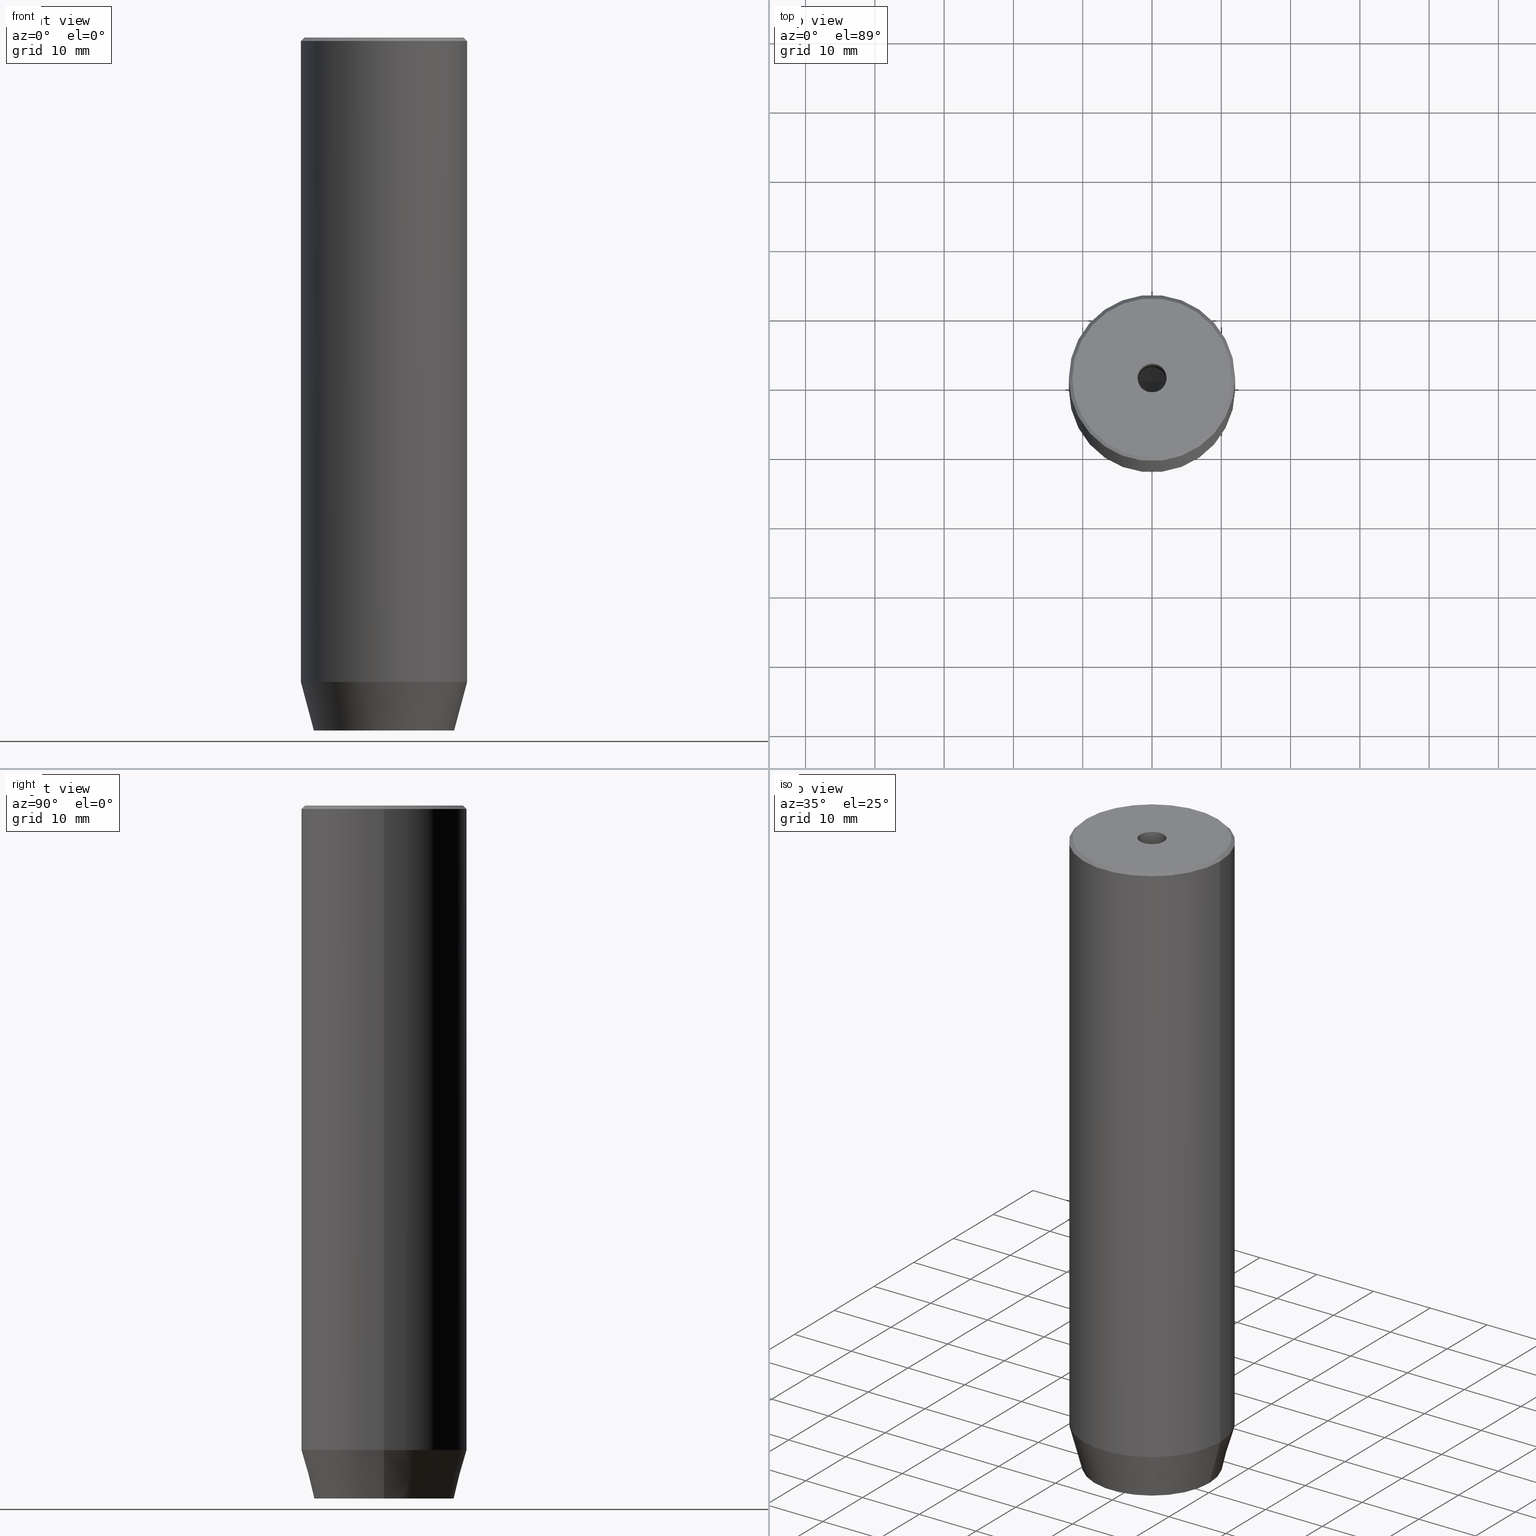
[diagram: canonical four-view strip — front | top / right | iso, engineering-drawing reading convention]
A machine part, canonical four-view strip (front | top / right | iso — engineering-drawing reading convention). The complete STEP part file that produces these views, byte-faithful:
ISO-10303-21;
HEADER;
FILE_DESCRIPTION (( 'STEP AP203' ),
    '1' );
FILE_NAME ('69d4.STEP',
    '2024-01-02T17:16:08',
    ( '' ),
    ( '' ),
    'SwSTEP 2.0',
    'SolidWorks 2019',
    '' );
FILE_SCHEMA (( 'CONFIG_CONTROL_DESIGN' ));
ENDSEC;

DATA;
#1 = CARTESIAN_POINT ( 'NONE',  ( -4.000000000000000000, 0.000000000000000000, -97.20000000000000284 ) ) ;
#2 = EDGE_LOOP ( 'NONE', ( #17, #92, #199, #133 ) ) ;
#3 = DIRECTION ( 'NONE',  ( 0.000000000000000000, 1.000000000000000000, 0.000000000000000000 ) ) ;
#4 = AXIS2_PLACEMENT_3D ( 'NONE', #463, #283, #83 ) ;
#5 = EDGE_CURVE ( 'NONE', #471, #516, #33, .T. ) ;
#6 = LINE ( 'NONE', #482, #538 ) ;
#7 = ORIENTED_EDGE ( 'NONE', *, *, #391, .T. ) ;
#8 = EDGE_CURVE ( 'NONE', #352, #516, #214, .T. ) ;
#9 = EDGE_LOOP ( 'NONE', ( #558, #257, #338, #163 ) ) ;
#10 = ORIENTED_EDGE ( 'NONE', *, *, #31, .F. ) ;
#11 = VERTEX_POINT ( 'NONE', #525 ) ;
#12 = EDGE_CURVE ( 'NONE', #137, #421, #445, .T. ) ;
#13 = CARTESIAN_POINT ( 'NONE',  ( -10.12435565298213547, 1.354726066681111050E-15, -100.0000000000000000 ) ) ;
#14 = ORIENTED_EDGE ( 'NONE', *, *, #561, .F. ) ;
#15 = DIRECTION ( 'NONE',  ( 0.5000000000000003331, -0.8660254037844385966, 0.000000000000000000 ) ) ;
#16 = CALENDAR_DATE ( 2024, 2, 1 ) ;
#17 = ORIENTED_EDGE ( 'NONE', *, *, #71, .T. ) ;
#18 = CIRCLE ( 'NONE', #440, 11.49999999999998046 ) ;
#19 = CC_DESIGN_SECURITY_CLASSIFICATION ( #208, ( #90 ) ) ;
#20 = VECTOR ( 'NONE', #494, 1000.000000000000000 ) ;
#21 = AXIS2_PLACEMENT_3D ( 'NONE', #459, #546, #550 ) ;
#22 = FACE_OUTER_BOUND ( 'NONE', #150, .T. ) ;
#23 = ADVANCED_FACE ( 'NONE', ( #68 ), #294, .T. ) ;
#24 = APPROVAL_ROLE ( '' ) ;
#25 = DIRECTION ( 'NONE',  ( 1.000000000000000000, 0.000000000000000000, 0.000000000000000000 ) ) ;
#26 = CARTESIAN_POINT ( 'NONE',  ( 0.000000000000000000, 0.000000000000000000, 0.000000000000000000 ) ) ;
#27 = ADVANCED_FACE ( 'NONE', ( #527 ), #120, .T. ) ;
#28 = DIRECTION ( 'NONE',  ( -0.000000000000000000, -0.000000000000000000, 1.000000000000000000 ) ) ;
#29 = CARTESIAN_POINT ( 'NONE',  ( 2.099999999999994760, 0.000000000000000000, -30.00000000000000000 ) ) ;
#30 = PLANE ( 'NONE',  #413 ) ;
#31 = EDGE_CURVE ( 'NONE', #514, #352, #52, .T. ) ;
#32 = DIRECTION ( 'NONE',  ( 0.8660254037844384856, -0.5000000000000002220, 0.000000000000000000 ) ) ;
#33 = LINE ( 'NONE', #493, #156 ) ;
#34 = PRODUCT_DEFINITION ( 'NEZN�M�', '', #90, #400 ) ;
#35 = LINE ( 'NONE', #326, #343 ) ;
#36 = CARTESIAN_POINT ( 'NONE',  ( -2.099999999999996980, 2.571758278209438013E-16, 0.000000000000000000 ) ) ;
#37 = EDGE_LOOP ( 'NONE', ( #182, #437, #74 ) ) ;
#38 = DIRECTION ( 'NONE',  ( -0.5000000000000003331, -0.8660254037844385966, 0.000000000000000000 ) ) ;
#39 = EDGE_CURVE ( 'NONE', #414, #516, #404, .T. ) ;
#40 = AXIS2_PLACEMENT_3D ( 'NONE', #78, #262, #25 ) ;
#41 = DIRECTION ( 'NONE',  ( 0.000000000000000000, 0.000000000000000000, -1.000000000000000000 ) ) ;
#42 = EDGE_LOOP ( 'NONE', ( #418, #381 ) ) ;
#43 = PERSON_AND_ORGANIZATION ( #332, #69 ) ;
#44 = DIRECTION ( 'NONE',  ( -0.000000000000000000, -0.000000000000000000, 1.000000000000000000 ) ) ;
#45 = VERTEX_POINT ( 'NONE', #216 ) ;
#46 = LINE ( 'NONE', #36, #128 ) ;
#47 = EDGE_LOOP ( 'NONE', ( #577, #510, #204, #476 ) ) ;
#48 = PRODUCT_RELATED_PRODUCT_CATEGORY ( 'detail', '', ( #175 ) ) ;
#49 = VECTOR ( 'NONE', #422, 1000.000000000000000 ) ;
#50 = CC_DESIGN_APPROVAL ( #506, ( #90 ) ) ;
#51 = DIRECTION ( 'NONE',  ( -0.8660254037844384856, -0.5000000000000002220, 0.000000000000000000 ) ) ;
#52 = CIRCLE ( 'NONE', #70, 12.00000000000000000 ) ;
#53 = ADVANCED_FACE ( 'NONE', ( #355 ), #30, .F. ) ;
#54 = EDGE_LOOP ( 'NONE', ( #522, #217, #187, #425 ) ) ;
#55 = ORIENTED_EDGE ( 'NONE', *, *, #188, .F. ) ;
#56 = ADVANCED_FACE ( 'NONE', ( #536 ), #306, .T. ) ;
#57 = VECTOR ( 'NONE', #266, 1000.000000000000000 ) ;
#58 = ORIENTED_EDGE ( 'NONE', *, *, #293, .T. ) ;
#59 = CLOSED_SHELL ( 'NONE', ( #264, #140, #27, #56, #426, #462, #288, #149, #255, #23, #134, #580, #484, #441, #53, #239, #504, #498, #375 ) ) ;
#60 = DIRECTION ( 'NONE',  ( -0.000000000000000000, -0.000000000000000000, 1.000000000000000000 ) ) ;
#61 = DATE_AND_TIME ( #502, #178 ) ;
#62 = EDGE_LOOP ( 'NONE', ( #279, #327, #377, #289, #389, #101 ) ) ;
#63 = CARTESIAN_POINT ( 'NONE',  ( 0.000000000000000000, 0.000000000000000000, 0.000000000000000000 ) ) ;
#64 = VERTEX_POINT ( 'NONE', #579 ) ;
#65 = EDGE_CURVE ( 'NONE', #196, #297, #489, .T. ) ;
#66 = DIRECTION ( 'NONE',  ( -0.000000000000000000, -0.000000000000000000, 1.000000000000000000 ) ) ;
#67 = APPROVAL_DATE_TIME ( #61, #268 ) ;
#68 = FACE_OUTER_BOUND ( 'NONE', #47, .T. ) ;
#69 = ORGANIZATION ( 'NEUR�EN�', 'NEUR�EN�', '' ) ;
#70 = AXIS2_PLACEMENT_3D ( 'NONE', #358, #260, #160 ) ;
#71 = EDGE_CURVE ( 'NONE', #64, #421, #127, .T. ) ;
#72 = CARTESIAN_POINT ( 'NONE',  ( 10.12435565298213547, 0.000000000000000000, -100.0000000000000000 ) ) ;
#73 = CARTESIAN_POINT ( 'NONE',  ( 11.49999999999998046, 1.438959988998138582E-15, 0.000000000000000000 ) ) ;
#74 = ORIENTED_EDGE ( 'NONE', *, *, #529, .T. ) ;
#75 = DIRECTION ( 'NONE',  ( 1.000000000000000000, 0.000000000000000000, 0.000000000000000000 ) ) ;
#76 = CARTESIAN_POINT ( 'NONE',  ( 0.000000000000000000, 0.000000000000000000, -1.990051048614449116E-16 ) ) ;
#77 = PLANE ( 'NONE',  #453 ) ;
#78 = CARTESIAN_POINT ( 'NONE',  ( 0.000000000000000000, 0.000000000000000000, 0.000000000000000000 ) ) ;
#79 = VECTOR ( 'NONE', #488, 1000.000000000000000 ) ;
#80 =( LENGTH_UNIT ( ) NAMED_UNIT ( * ) SI_UNIT ( .MILLI., .METRE. ) );
#81 = CARTESIAN_POINT ( 'NONE',  ( 0.000000000000000000, 0.000000000000000000, 0.000000000000000000 ) ) ;
#82 = DIRECTION ( 'NONE',  ( 0.000000000000000000, 0.000000000000000000, 1.000000000000000000 ) ) ;
#83 = DIRECTION ( 'NONE',  ( -0.8660254037844385966, 0.5000000000000001110, 0.000000000000000000 ) ) ;
#84 = ORIENTED_EDGE ( 'NONE', *, *, #138, .T. ) ;
#85 = DIRECTION ( 'NONE',  ( -0.000000000000000000, -0.000000000000000000, 1.000000000000000000 ) ) ;
#86 = CARTESIAN_POINT ( 'NONE',  ( 4.000000000000000000, 2.309401076758503368, -97.20000000000000284 ) ) ;
#87 = EDGE_LOOP ( 'NONE', ( #478, #58, #401, #236 ) ) ;
#88 = PERSON_AND_ORGANIZATION ( #332, #69 ) ;
#89 = AXIS2_PLACEMENT_3D ( 'NONE', #543, #278, #420 ) ;
#90 = PRODUCT_DEFINITION_FORMATION_WITH_SPECIFIED_SOURCE ( 'LIBOVOLN�', '', #175, .NOT_KNOWN. ) ;
#91 = DIRECTION ( 'NONE',  ( 1.000000000000000000, 0.000000000000000000, 0.000000000000000000 ) ) ;
#92 = ORIENTED_EDGE ( 'NONE', *, *, #12, .F. ) ;
#93 = CARTESIAN_POINT ( 'NONE',  ( -4.000000000000000000, -2.309401076758503368, -97.20000000000000284 ) ) ;
#94 = EDGE_LOOP ( 'NONE', ( #238, #125, #142 ) ) ;
#95 = PLANE ( 'NONE',  #4 ) ;
#96 = ORIENTED_EDGE ( 'NONE', *, *, #521, .F. ) ;
#97 = CC_DESIGN_DATE_AND_TIME_ASSIGNMENT ( #436, #524, ( #208 ) ) ;
#98 = AXIS2_PLACEMENT_3D ( 'NONE', #269, #231, #372 ) ;
#99 = VECTOR ( 'NONE', #578, 1000.000000000000114 ) ;
#100 = DIRECTION ( 'NONE',  ( -0.2588190451025213501, 3.169619151431772337E-17, 0.9659258262890680902 ) ) ;
#101 = ORIENTED_EDGE ( 'NONE', *, *, #180, .F. ) ;
#102 = ORIENTED_EDGE ( 'NONE', *, *, #324, .T. ) ;
#103 = VERTEX_POINT ( 'NONE', #73 ) ;
#104 = CALENDAR_DATE ( 2024, 2, 1 ) ;
#105 = AXIS2_PLACEMENT_3D ( 'NONE', #206, #66, #250 ) ;
#106 = CIRCLE ( 'NONE', #403, 2.099999999999994760 ) ;
#107 = VERTEX_POINT ( 'NONE', #124 ) ;
#108 = PLANE ( 'NONE',  #242 ) ;
#109 = DATE_TIME_ROLE ( 'creation_date' ) ;
#110 = ORIENTED_EDGE ( 'NONE', *, *, #284, .F. ) ;
#111 = CARTESIAN_POINT ( 'NONE',  ( 2.099999999999998757, 0.000000000000000000, -1.990051048614449116E-16 ) ) ;
#112 = PERSON_AND_ORGANIZATION ( #332, #69 ) ;
#113 = DIRECTION ( 'NONE',  ( -0.000000000000000000, -0.000000000000000000, 1.000000000000000000 ) ) ;
#114 = EDGE_CURVE ( 'NONE', #137, #560, #209, .T. ) ;
#115 = CARTESIAN_POINT ( 'NONE',  ( -4.000000000000000000, 0.000000000000000000, -100.0000000000000000 ) ) ;
#116 = APPROVAL_DATE_TIME ( #203, #412 ) ;
#117 = CARTESIAN_POINT ( 'NONE',  ( 0.000000000000000000, 0.000000000000000000, -0.5000000000000196509 ) ) ;
#118 = AXIS2_PLACEMENT_3D ( 'NONE', #520, #38, #32 ) ;
#119 = EDGE_LOOP ( 'NONE', ( #387, #247, #308, #84 ) ) ;
#120 = CONICAL_SURFACE ( 'NONE', #317, 11.49999999999998046, 0.7853981633974482790 ) ;
#121 = DIRECTION ( 'NONE',  ( -0.000000000000000000, -0.000000000000000000, -1.000000000000000000 ) ) ;
#122 = CARTESIAN_POINT ( 'NONE',  ( 4.000000000000000000, 0.000000000000000000, -100.0000000000000000 ) ) ;
#123 = FACE_OUTER_BOUND ( 'NONE', #37, .T. ) ;
#124 = CARTESIAN_POINT ( 'NONE',  ( 4.336808689942017736E-16, -4.618802153517006737, -100.0000000000000000 ) ) ;
#125 = ORIENTED_EDGE ( 'NONE', *, *, #395, .T. ) ;
#126 = DIRECTION ( 'NONE',  ( 0.8571673007021113344, 0.000000000000000000, 0.5150380749100558209 ) ) ;
#127 = LINE ( 'NONE', #300, #539 ) ;
#128 = VECTOR ( 'NONE', #467, 1000.000000000000000 ) ;
#129 = VECTOR ( 'NONE', #173, 1000.000000000000000 ) ;
#130 = LINE ( 'NONE', #321, #275 ) ;
#131 = CC_DESIGN_PERSON_AND_ORGANIZATION_ASSIGNMENT ( #386, #571, ( #90 ) ) ;
#132 = CARTESIAN_POINT ( 'NONE',  ( 4.000000000000000000, -2.309401076758502480, -100.0000000000000000 ) ) ;
#133 = ORIENTED_EDGE ( 'NONE', *, *, #195, .T. ) ;
#134 = ADVANCED_FACE ( 'NONE', ( #312 ), #212, .F. ) ;
#135 = APPROVAL_ROLE ( '' ) ;
#136 = FACE_OUTER_BOUND ( 'NONE', #87, .T. ) ;
#137 = VERTEX_POINT ( 'NONE', #311 ) ;
#138 = EDGE_CURVE ( 'NONE', #434, #344, #179, .T. ) ;
#139 = CARTESIAN_POINT ( 'NONE',  ( 2.099999999999996980, 0.000000000000000000, 0.000000000000000000 ) ) ;
#140 = ADVANCED_FACE ( 'NONE', ( #405 ), #454, .F. ) ;
#141 = LINE ( 'NONE', #181, #384 ) ;
#142 = ORIENTED_EDGE ( 'NONE', *, *, #470, .T. ) ;
#143 = LINE ( 'NONE', #249, #423 ) ;
#144 = ORIENTED_EDGE ( 'NONE', *, *, #361, .F. ) ;
#145 = AXIS2_PLACEMENT_3D ( 'NONE', #272, #41, #417 ) ;
#146 = CC_DESIGN_APPROVAL ( #268, ( #34 ) ) ;
#147 = AXIS2_PLACEMENT_3D ( 'NONE', #81, #569, #267 ) ;
#148 = ORIENTED_EDGE ( 'NONE', *, *, #521, .T. ) ;
#149 = ADVANCED_FACE ( 'NONE', ( #487 ), #253, .T. ) ;
#150 = EDGE_LOOP ( 'NONE', ( #273, #584, #439, #148 ) ) ;
#151 = COORDINATED_UNIVERSAL_TIME_OFFSET ( 1, 0, .AHEAD. ) ;
#152 = FACE_OUTER_BOUND ( 'NONE', #460, .T. ) ;
#153 = CALENDAR_DATE ( 2024, 2, 1 ) ;
#154 = CIRCLE ( 'NONE', #274, 2.099999999999998757 ) ;
#155 = VERTEX_POINT ( 'NONE', #93 ) ;
#156 = VECTOR ( 'NONE', #219, 1000.000000000000000 ) ;
#157 = CARTESIAN_POINT ( 'NONE',  ( 2.000000000000000888, -3.464101615137754386, -100.0000000000000000 ) ) ;
#158 = COORDINATED_UNIVERSAL_TIME_OFFSET ( 1, 0, .AHEAD. ) ;
#159 = EDGE_CURVE ( 'NONE', #556, #434, #370, .T. ) ;
#160 = DIRECTION ( 'NONE',  ( 1.000000000000000000, 0.000000000000000000, 0.000000000000000000 ) ) ;
#161 = DIRECTION ( 'NONE',  ( -1.000000000000000000, 0.000000000000000000, -0.000000000000000000 ) ) ;
#162 = DIRECTION ( 'NONE',  ( 1.000000000000000000, 0.000000000000000000, 0.000000000000000000 ) ) ;
#163 = ORIENTED_EDGE ( 'NONE', *, *, #515, .F. ) ;
#164 = CARTESIAN_POINT ( 'NONE',  ( 0.000000000000000000, 4.618802153517006737, -100.0000000000000000 ) ) ;
#165 = CALENDAR_DATE ( 2024, 2, 1 ) ;
#166 = CARTESIAN_POINT ( 'NONE',  ( 0.000000000000000000, 0.000000000000000000, 0.000000000000000000 ) ) ;
#167 = CIRCLE ( 'NONE', #21, 12.00000000000000000 ) ;
#168 = VECTOR ( 'NONE', #455, 1000.000000000000000 ) ;
#169 = FACE_OUTER_BOUND ( 'NONE', #319, .T. ) ;
#170 = CARTESIAN_POINT ( 'NONE',  ( 0.000000000000000000, 0.000000000000000000, -93.00000000000000000 ) ) ;
#171 = ORIENTED_EDGE ( 'NONE', *, *, #351, .F. ) ;
#172 = LINE ( 'NONE', #496, #99 ) ;
#173 = DIRECTION ( 'NONE',  ( 0.000000000000000000, -1.000000000000000000, 0.000000000000000000 ) ) ;
#174 = DIRECTION ( 'NONE',  ( -0.000000000000000000, -0.000000000000000000, 1.000000000000000000 ) ) ;
#175 = PRODUCT ( '69d4', '69d4', '', ( #230 ) ) ;
#176 = CARTESIAN_POINT ( 'NONE',  ( 0.000000000000000000, 0.000000000000000000, -100.0000000000000000 ) ) ;
#177 = VECTOR ( 'NONE', #51, 1000.000000000000114 ) ;
#178 = LOCAL_TIME ( 18, 16, 8.000000000000000000, #276 ) ;
#179 = CIRCLE ( 'NONE', #374, 2.099999999999998757 ) ;
#180 = EDGE_CURVE ( 'NONE', #421, #196, #141, .T. ) ;
#181 = CARTESIAN_POINT ( 'NONE',  ( 2.000000000000000444, 3.464101615137754386, -100.0000000000000000 ) ) ;
#182 = ORIENTED_EDGE ( 'NONE', *, *, #395, .F. ) ;
#183 = DIRECTION ( 'NONE',  ( 0.8660254037844387076, 0.5000000000000001110, 0.000000000000000000 ) ) ;
#184 = CARTESIAN_POINT ( 'NONE',  ( 11.49999999999998046, 1.408343819019453415E-15, 0.000000000000000000 ) ) ;
#185 = DIRECTION ( 'NONE',  ( 1.000000000000000000, 0.000000000000000000, 0.000000000000000000 ) ) ;
#186 = FACE_OUTER_BOUND ( 'NONE', #541, .T. ) ;
#187 = ORIENTED_EDGE ( 'NONE', *, *, #309, .F. ) ;
#188 = EDGE_CURVE ( 'NONE', #155, #234, #583, .T. ) ;
#189 = CC_DESIGN_DATE_AND_TIME_ASSIGNMENT ( #243, #109, ( #34 ) ) ;
#190 = CIRCLE ( 'NONE', #265, 10.12435565298213547 ) ;
#191 = LINE ( 'NONE', #115, #340 ) ;
#192 = ORIENTED_EDGE ( 'NONE', *, *, #138, .F. ) ;
#193 = FACE_OUTER_BOUND ( 'NONE', #9, .T. ) ;
#194 = ORIENTED_EDGE ( 'NONE', *, *, #180, .T. ) ;
#195 = EDGE_CURVE ( 'NONE', #234, #64, #318, .T. ) ;
#196 = VERTEX_POINT ( 'NONE', #223 ) ;
#197 = AXIS2_PLACEMENT_3D ( 'NONE', #117, #363, #447 ) ;
#198 = CC_DESIGN_PERSON_AND_ORGANIZATION_ASSIGNMENT ( #88, #466, ( #175 ) ) ;
#199 = ORIENTED_EDGE ( 'NONE', *, *, #495, .F. ) ;
#200 = PERSON_AND_ORGANIZATION ( #332, #69 ) ;
#201 = EDGE_LOOP ( 'NONE', ( #194, #507, #229, #287 ) ) ;
#202 = DIRECTION ( 'NONE',  ( -0.8571673007021113344, 1.049727191138617463E-16, 0.5150380749100558209 ) ) ;
#203 = DATE_AND_TIME ( #165, #263 ) ;
#204 = ORIENTED_EDGE ( 'NONE', *, *, #5, .T. ) ;
#205 = EDGE_CURVE ( 'NONE', #477, #107, #130, .T. ) ;
#206 = CARTESIAN_POINT ( 'NONE',  ( 0.000000000000000000, 0.000000000000000000, -30.00000000000000000 ) ) ;
#207 = PERSON_AND_ORGANIZATION ( #332, #69 ) ;
#208 = SECURITY_CLASSIFICATION ( '', '', #346 ) ;
#209 = LINE ( 'NONE', #392, #168 ) ;
#210 = AXIS2_PLACEMENT_3D ( 'NONE', #170, #28, #162 ) ;
#211 = DIRECTION ( 'NONE',  ( -0.8660254037844384856, 0.5000000000000002220, 0.000000000000000000 ) ) ;
#212 = PLANE ( 'NONE',  #444 ) ;
#213 = CARTESIAN_POINT ( 'NONE',  ( -12.00000000000000000, 1.469576158976823947E-15, -93.00000000000000000 ) ) ;
#214 = LINE ( 'NONE', #399, #20 ) ;
#215 = CARTESIAN_POINT ( 'NONE',  ( 4.000000000000000000, 2.309401076758503368, -97.20000000000000284 ) ) ;
#216 = CARTESIAN_POINT ( 'NONE',  ( -4.000000000000000000, -2.309401076758503368, -100.0000000000000000 ) ) ;
#217 = ORIENTED_EDGE ( 'NONE', *, *, #313, .T. ) ;
#218 = CARTESIAN_POINT ( 'NONE',  ( -12.00000000000000000, 1.469576158976823947E-15, -0.5000000000000196509 ) ) ;
#219 = DIRECTION ( 'NONE',  ( -0.7071067811865475727, 0.000000000000000000, -0.7071067811865474617 ) ) ;
#220 = DIRECTION ( 'NONE',  ( -0.8660254037844384856, -0.5000000000000002220, 0.000000000000000000 ) ) ;
#221 = CARTESIAN_POINT ( 'NONE',  ( 0.000000000000000000, 0.000000000000000000, -97.20000000000000284 ) ) ;
#222 = EDGE_CURVE ( 'NONE', #474, #371, #190, .T. ) ;
#223 = CARTESIAN_POINT ( 'NONE',  ( 4.000000000000000000, 2.309401076758503368, -100.0000000000000000 ) ) ;
#224 = VECTOR ( 'NONE', #202, 1000.000000000000000 ) ;
#225 = CONICAL_SURFACE ( 'NONE', #285, 2.099999999999994760, 1.029744258676652535 ) ;
#226 = AXIS2_PLACEMENT_3D ( 'NONE', #576, #347, #534 ) ;
#227 = CARTESIAN_POINT ( 'NONE',  ( 0.000000000000000000, 0.000000000000000000, 0.000000000000000000 ) ) ;
#228 = DIRECTION ( 'NONE',  ( 1.000000000000000000, 0.000000000000000000, 0.000000000000000000 ) ) ;
#229 = ORIENTED_EDGE ( 'NONE', *, *, #114, .F. ) ;
#230 = MECHANICAL_CONTEXT ( 'NONE', #259, 'mechanical' ) ;
#231 = DIRECTION ( 'NONE',  ( -0.000000000000000000, -0.000000000000000000, 1.000000000000000000 ) ) ;
#232 = ORIENTED_EDGE ( 'NONE', *, *, #391, .F. ) ;
#233 = DIRECTION ( 'NONE',  ( -0.000000000000000000, -0.000000000000000000, -1.000000000000000000 ) ) ;
#234 = VERTEX_POINT ( 'NONE', #508 ) ;
#235 = CARTESIAN_POINT ( 'NONE',  ( 4.000000000000000000, -2.309401076758502480, -97.20000000000000284 ) ) ;
#236 = ORIENTED_EDGE ( 'NONE', *, *, #159, .F. ) ;
#237 = PRODUCT_DEFINITION_SHAPE ( 'NONE', 'NONE',  #34 ) ;
#238 = ORIENTED_EDGE ( 'NONE', *, *, #513, .F. ) ;
#239 = ADVANCED_FACE ( 'NONE', ( #411 ), #95, .F. ) ;
#240 = ORIENTED_EDGE ( 'NONE', *, *, #188, .T. ) ;
#241 = CIRCLE ( 'NONE', #573, 10.12435565298213547 ) ;
#242 = AXIS2_PLACEMENT_3D ( 'NONE', #397, #15, #531 ) ;
#243 = DATE_AND_TIME ( #104, #452 ) ;
#244 = ORIENTED_EDGE ( 'NONE', *, *, #277, .T. ) ;
#245 = PLANE ( 'NONE',  #383 ) ;
#246 = PERSON_AND_ORGANIZATION_ROLE ( 'creator' ) ;
#247 = ORIENTED_EDGE ( 'NONE', *, *, #529, .F. ) ;
#248 = EDGE_CURVE ( 'NONE', #385, #477, #35, .T. ) ;
#249 = CARTESIAN_POINT ( 'NONE',  ( -4.000000000000000000, -2.309401076758503368, -97.20000000000000284 ) ) ;
#250 = DIRECTION ( 'NONE',  ( 1.000000000000000000, 0.000000000000000000, 0.000000000000000000 ) ) ;
#251 = CONICAL_SURFACE ( 'NONE', #89, 12.00000000000000000, 0.2617993877991500740 ) ;
#252 = APPROVAL_PERSON_ORGANIZATION ( #290, #506, #24 ) ;
#253 = CYLINDRICAL_SURFACE ( 'NONE', #40, 12.00000000000000000 ) ;
#254 = LINE ( 'NONE', #568, #224 ) ;
#255 = ADVANCED_FACE ( 'NONE', ( #408 ), #251, .T. ) ;
#256 = DIRECTION ( 'NONE',  ( 1.000000000000000000, 0.000000000000000000, -0.000000000000000000 ) ) ;
#257 = ORIENTED_EDGE ( 'NONE', *, *, #8, .T. ) ;
#258 = PLANE ( 'NONE',  #464 ) ;
#259 = APPLICATION_CONTEXT ( 'configuration controlled 3d designs of mechanical parts and assemblies' ) ;
#260 = DIRECTION ( 'NONE',  ( -0.000000000000000000, -0.000000000000000000, 1.000000000000000000 ) ) ;
#261 = DIRECTION ( 'NONE',  ( 1.000000000000000000, 0.000000000000000000, 0.000000000000000000 ) ) ;
#262 = DIRECTION ( 'NONE',  ( -0.000000000000000000, -0.000000000000000000, 1.000000000000000000 ) ) ;
#263 = LOCAL_TIME ( 18, 16, 8.000000000000000000, #349 ) ;
#264 = ADVANCED_FACE ( 'NONE', ( #136 ), #581, .F. ) ;
#265 = AXIS2_PLACEMENT_3D ( 'NONE', #497, #367, #91 ) ;
#266 = DIRECTION ( 'NONE',  ( -0.000000000000000000, -0.000000000000000000, -1.000000000000000000 ) ) ;
#267 = DIRECTION ( 'NONE',  ( -1.000000000000000000, 0.000000000000000000, 0.000000000000000000 ) ) ;
#268 = APPROVAL ( #419, 'NEUR�EN�' ) ;
#269 = CARTESIAN_POINT ( 'NONE',  ( 0.000000000000000000, 0.000000000000000000, 0.000000000000000000 ) ) ;
#270 = ORIENTED_EDGE ( 'NONE', *, *, #205, .T. ) ;
#271 =( NAMED_UNIT ( * ) PLANE_ANGLE_UNIT ( ) SI_UNIT ( $, .RADIAN. ) );
#272 = CARTESIAN_POINT ( 'NONE',  ( 0.000000000000000000, 0.000000000000000000, -0.5000000000000196509 ) ) ;
#273 = ORIENTED_EDGE ( 'NONE', *, *, #416, .T. ) ;
#274 = AXIS2_PLACEMENT_3D ( 'NONE', #360, #364, #261 ) ;
#275 = VECTOR ( 'NONE', #329, 1000.000000000000000 ) ;
#276 = COORDINATED_UNIVERSAL_TIME_OFFSET ( 1, 0, .AHEAD. ) ;
#277 = EDGE_CURVE ( 'NONE', #371, #474, #241, .T. ) ;
#278 = DIRECTION ( 'NONE',  ( -0.000000000000000000, -0.000000000000000000, 1.000000000000000000 ) ) ;
#279 = ORIENTED_EDGE ( 'NONE', *, *, #71, .F. ) ;
#280 = ADVANCED_BREP_SHAPE_REPRESENTATION ( '69d4', ( #323, #479 ), #432 ) ;
#281 = DIRECTION ( 'NONE',  ( 0.000000000000000000, -0.000000000000000000, 1.000000000000000000 ) ) ;
#282 = ORIENTED_EDGE ( 'NONE', *, *, #429, .T. ) ;
#283 = DIRECTION ( 'NONE',  ( 0.5000000000000001110, 0.8660254037844385966, -0.000000000000000000 ) ) ;
#284 = EDGE_CURVE ( 'NONE', #352, #514, #167, .T. ) ;
#285 = AXIS2_PLACEMENT_3D ( 'NONE', #461, #369, #575 ) ;
#286 = CARTESIAN_POINT ( 'NONE',  ( -11.49999999999998046, 0.000000000000000000, 0.000000000000000000 ) ) ;
#287 = ORIENTED_EDGE ( 'NONE', *, *, #12, .T. ) ;
#288 = ADVANCED_FACE ( 'NONE', ( #505, #186 ), #469, .T. ) ;
#289 = ORIENTED_EDGE ( 'NONE', *, *, #416, .F. ) ;
#290 = PERSON_AND_ORGANIZATION ( #332, #69 ) ;
#291 = ORIENTED_EDGE ( 'NONE', *, *, #378, .F. ) ;
#292 = PERSON_AND_ORGANIZATION_ROLE ( 'design_supplier' ) ;
#293 = EDGE_CURVE ( 'NONE', #481, #344, #46, .T. ) ;
#294 = CONICAL_SURFACE ( 'NONE', #147, 11.49999999999998046, 0.7853981633974482790 ) ;
#295 = ORIENTED_EDGE ( 'NONE', *, *, #351, .T. ) ;
#296 = CARTESIAN_POINT ( 'NONE',  ( 4.000000000000000000, 0.000000000000000000, -97.20000000000000284 ) ) ;
#297 = VERTEX_POINT ( 'NONE', #132 ) ;
#298 = FACE_OUTER_BOUND ( 'NONE', #119, .T. ) ;
#299 = APPROVAL_DATE_TIME ( #480, #506 ) ;
#300 = CARTESIAN_POINT ( 'NONE',  ( -2.000000000000000000, 3.464101615137754830, -100.0000000000000000 ) ) ;
#301 = UNCERTAINTY_MEASURE_WITH_UNIT (LENGTH_MEASURE( 1.000000000000000082E-05 ), #80, 'distance_accuracy_value', 'NONE');
#302 = EDGE_CURVE ( 'NONE', #560, #196, #500, .T. ) ;
#303 = CARTESIAN_POINT ( 'NONE',  ( -2.099999999999998757, 2.571758278209440478E-16, -1.990051048614449116E-16 ) ) ;
#304 = VECTOR ( 'NONE', #211, 1000.000000000000114 ) ;
#305 = SHAPE_DEFINITION_REPRESENTATION ( #237, #280 ) ;
#306 = CONICAL_SURFACE ( 'NONE', #210, 12.00000000000000000, 0.2617993877991500740 ) ;
#307 = DIRECTION ( 'NONE',  ( -1.000000000000000000, 0.000000000000000000, 0.000000000000000000 ) ) ;
#308 = ORIENTED_EDGE ( 'NONE', *, *, #159, .T. ) ;
#309 = EDGE_CURVE ( 'NONE', #516, #414, #517, .T. ) ;
#310 = DIRECTION ( 'NONE',  ( -0.000000000000000000, -0.000000000000000000, 1.000000000000000000 ) ) ;
#311 = CARTESIAN_POINT ( 'NONE',  ( 0.000000000000000000, 4.618802153517006737, -97.20000000000000284 ) ) ;
#312 = FACE_OUTER_BOUND ( 'NONE', #2, .T. ) ;
#313 = EDGE_CURVE ( 'NONE', #103, #414, #586, .T. ) ;
#314 = DIRECTION ( 'NONE',  ( 0.8660254037844387076, 0.5000000000000001110, 0.000000000000000000 ) ) ;
#315 = AXIS2_PLACEMENT_3D ( 'NONE', #63, #393, #438 ) ;
#316 = CC_DESIGN_PERSON_AND_ORGANIZATION_ASSIGNMENT ( #207, #433, ( #208 ) ) ;
#317 = AXIS2_PLACEMENT_3D ( 'NONE', #166, #457, #307 ) ;
#318 = LINE ( 'NONE', #331, #465 ) ;
#319 = EDGE_LOOP ( 'NONE', ( #102, #373, #55, #330 ) ) ;
#320 = CARTESIAN_POINT ( 'NONE',  ( -2.000000000000000000, 3.464101615137754830, -97.20000000000000284 ) ) ;
#321 = CARTESIAN_POINT ( 'NONE',  ( 4.336808689942017736E-16, -4.618802153517006737, -97.20000000000000284 ) ) ;
#322 = ORIENTED_EDGE ( 'NONE', *, *, #495, .T. ) ;
#323 = MANIFOLD_SOLID_BREP ( 'Vrt�k z�vitn�ku pro M5 z�vit1', #59 ) ;
#324 = EDGE_CURVE ( 'NONE', #45, #64, #191, .T. ) ;
#325 = APPLICATION_PROTOCOL_DEFINITION ( 'international standard', 'config_control_design', 1994, #356 ) ;
#326 = CARTESIAN_POINT ( 'NONE',  ( 2.000000000000000888, -3.464101615137754386, -97.20000000000000284 ) ) ;
#327 = ORIENTED_EDGE ( 'NONE', *, *, #324, .F. ) ;
#328 = AXIS2_PLACEMENT_3D ( 'NONE', #227, #85, #415 ) ;
#329 = DIRECTION ( 'NONE',  ( -0.000000000000000000, -0.000000000000000000, -1.000000000000000000 ) ) ;
#330 = ORIENTED_EDGE ( 'NONE', *, *, #361, .T. ) ;
#331 = CARTESIAN_POINT ( 'NONE',  ( -4.000000000000000000, 2.309401076758503368, -97.20000000000000284 ) ) ;
#332 = PERSON ( 'NEUR�EN�', 'NEUR�EN�', 'NEUR�EN�', ('NEUR�EN�'), ('NEUR�EN�'), ('NEUR�EN�') ) ;
#333 = DIRECTION ( 'NONE',  ( 1.000000000000000000, 0.000000000000000000, 0.000000000000000000 ) ) ;
#334 = ORIENTED_EDGE ( 'NONE', *, *, #515, .T. ) ;
#335 = VECTOR ( 'NONE', #183, 999.9999999999998863 ) ;
#336 = VECTOR ( 'NONE', #350, 1000.000000000000000 ) ;
#337 = ORIENTED_EDGE ( 'NONE', *, *, #378, .T. ) ;
#338 = ORIENTED_EDGE ( 'NONE', *, *, #309, .T. ) ;
#339 = ORIENTED_EDGE ( 'NONE', *, *, #39, .T. ) ;
#340 = VECTOR ( 'NONE', #523, 1000.000000000000000 ) ;
#341 = LOCAL_TIME ( 18, 16, 8.000000000000000000, #486 ) ;
#342 = PLANE ( 'NONE',  #118 ) ;
#343 = VECTOR ( 'NONE', #220, 1000.000000000000114 ) ;
#344 = VERTEX_POINT ( 'NONE', #303 ) ;
#345 = LINE ( 'NONE', #213, #382 ) ;
#346 = SECURITY_CLASSIFICATION_LEVEL ( 'unclassified' ) ;
#347 = DIRECTION ( 'NONE',  ( -0.000000000000000000, -0.000000000000000000, 1.000000000000000000 ) ) ;
#348 = CYLINDRICAL_SURFACE ( 'NONE', #431, 2.099999999999996980 ) ;
#349 = COORDINATED_UNIVERSAL_TIME_OFFSET ( 1, 0, .AHEAD. ) ;
#350 = DIRECTION ( 'NONE',  ( -0.000000000000000000, -0.000000000000000000, -1.000000000000000000 ) ) ;
#351 = EDGE_CURVE ( 'NONE', #560, #385, #446, .T. ) ;
#352 = VERTEX_POINT ( 'NONE', #526 ) ;
#353 = FACE_BOUND ( 'NONE', #62, .T. ) ;
#354 = PERSON_AND_ORGANIZATION ( #332, #69 ) ;
#355 = FACE_OUTER_BOUND ( 'NONE', #501, .T. ) ;
#356 = APPLICATION_CONTEXT ( 'configuration controlled 3d designs of mechanical parts and assemblies' ) ;
#357 = CARTESIAN_POINT ( 'NONE',  ( 12.00000000000000000, 0.000000000000000000, 0.000000000000000000 ) ) ;
#358 = CARTESIAN_POINT ( 'NONE',  ( 0.000000000000000000, 0.000000000000000000, -93.00000000000000000 ) ) ;
#359 = EDGE_LOOP ( 'NONE', ( #512, #549, #334, #339 ) ) ;
#360 = CARTESIAN_POINT ( 'NONE',  ( 0.000000000000000000, 0.000000000000000000, -1.990051048614449116E-16 ) ) ;
#361 = EDGE_CURVE ( 'NONE', #155, #45, #143, .T. ) ;
#362 = CC_DESIGN_PERSON_AND_ORGANIZATION_ASSIGNMENT ( #200, #292, ( #90 ) ) ;
#363 = DIRECTION ( 'NONE',  ( 0.000000000000000000, 0.000000000000000000, -1.000000000000000000 ) ) ;
#364 = DIRECTION ( 'NONE',  ( -0.000000000000000000, -0.000000000000000000, 1.000000000000000000 ) ) ;
#365 = DIRECTION ( 'NONE',  ( -0.000000000000000000, -0.000000000000000000, 1.000000000000000000 ) ) ;
#366 = CARTESIAN_POINT ( 'NONE',  ( 0.000000000000000000, 0.000000000000000000, 0.000000000000000000 ) ) ;
#367 = DIRECTION ( 'NONE',  ( -0.000000000000000000, -0.000000000000000000, 1.000000000000000000 ) ) ;
#368 = ORIENTED_EDGE ( 'NONE', *, *, #248, .T. ) ;
#369 = DIRECTION ( 'NONE',  ( -0.000000000000000000, -0.000000000000000000, 1.000000000000000000 ) ) ;
#370 = LINE ( 'NONE', #139, #557 ) ;
#371 = VERTEX_POINT ( 'NONE', #72 ) ;
#372 = DIRECTION ( 'NONE',  ( 1.000000000000000000, 0.000000000000000000, 0.000000000000000000 ) ) ;
#373 = ORIENTED_EDGE ( 'NONE', *, *, #195, .F. ) ;
#374 = AXIS2_PLACEMENT_3D ( 'NONE', #76, #113, #449 ) ;
#375 = ADVANCED_FACE ( 'NONE', ( #298 ), #348, .F. ) ;
#376 = DIRECTION ( 'NONE',  ( 0.8660254037844385966, -0.5000000000000001110, 0.000000000000000000 ) ) ;
#377 = ORIENTED_EDGE ( 'NONE', *, *, #554, .F. ) ;
#378 = EDGE_CURVE ( 'NONE', #477, #155, #509, .T. ) ;
#379 = DIRECTION ( 'NONE',  ( 0.2588190451025213501, 0.000000000000000000, 0.9659258262890680902 ) ) ;
#380 = EDGE_LOOP ( 'NONE', ( #192, #14 ) ) ;
#381 = ORIENTED_EDGE ( 'NONE', *, *, #222, .F. ) ;
#382 = VECTOR ( 'NONE', #100, 1000.000000000000000 ) ;
#383 = AXIS2_PLACEMENT_3D ( 'NONE', #475, #552, #161 ) ;
#384 = VECTOR ( 'NONE', #376, 1000.000000000000000 ) ;
#385 = VERTEX_POINT ( 'NONE', #235 ) ;
#386 = PERSON_AND_ORGANIZATION ( #332, #69 ) ;
#387 = ORIENTED_EDGE ( 'NONE', *, *, #293, .F. ) ;
#388 = DIRECTION ( 'NONE',  ( 1.000000000000000000, 0.000000000000000000, 0.000000000000000000 ) ) ;
#389 = ORIENTED_EDGE ( 'NONE', *, *, #65, .F. ) ;
#390 = CARTESIAN_POINT ( 'NONE',  ( -2.000000000000000888, -3.464101615137754386, -97.20000000000000284 ) ) ;
#391 = EDGE_CURVE ( 'NONE', #371, #514, #6, .T. ) ;
#392 = CARTESIAN_POINT ( 'NONE',  ( 2.000000000000000444, 3.464101615137754386, -97.20000000000000284 ) ) ;
#393 = DIRECTION ( 'NONE',  ( -0.000000000000000000, -0.000000000000000000, 1.000000000000000000 ) ) ;
#394 = APPROVAL_ROLE ( '' ) ;
#395 = EDGE_CURVE ( 'NONE', #11, #481, #254, .T. ) ;
#396 = CARTESIAN_POINT ( 'NONE',  ( 0.000000000000000000, 4.618802153517006737, -97.20000000000000284 ) ) ;
#397 = CARTESIAN_POINT ( 'NONE',  ( 2.000000000000000888, -3.464101615137754386, -97.20000000000000284 ) ) ;
#398 = APPROVAL_STATUS ( 'not_yet_approved' ) ;
#399 = CARTESIAN_POINT ( 'NONE',  ( -12.00000000000000000, 1.469576158976823947E-15, 0.000000000000000000 ) ) ;
#400 = DESIGN_CONTEXT ( 'detailed design', #356, 'design' ) ;
#401 = ORIENTED_EDGE ( 'NONE', *, *, #561, .T. ) ;
#402 = DIRECTION ( 'NONE',  ( -1.000000000000000000, 0.000000000000000000, -0.000000000000000000 ) ) ;
#403 = AXIS2_PLACEMENT_3D ( 'NONE', #499, #174, #75 ) ;
#404 = CIRCLE ( 'NONE', #197, 12.00000000000000000 ) ;
#405 = FACE_OUTER_BOUND ( 'NONE', #94, .T. ) ;
#406 = LINE ( 'NONE', #320, #335 ) ;
#407 = DIRECTION ( 'NONE',  ( -0.000000000000000000, 0.000000000000000000, -1.000000000000000000 ) ) ;
#408 = FACE_OUTER_BOUND ( 'NONE', #428, .T. ) ;
#409 = DIRECTION ( 'NONE',  ( 0.000000000000000000, 0.000000000000000000, -1.000000000000000000 ) ) ;
#410 = EDGE_CURVE ( 'NONE', #103, #471, #18, .T. ) ;
#411 = FACE_OUTER_BOUND ( 'NONE', #201, .T. ) ;
#412 = APPROVAL ( #559, 'NEUR�EN�' ) ;
#413 = AXIS2_PLACEMENT_3D ( 'NONE', #532, #256, #407 ) ;
#414 = VERTEX_POINT ( 'NONE', #472 ) ;
#415 = DIRECTION ( 'NONE',  ( 1.000000000000000000, 0.000000000000000000, 0.000000000000000000 ) ) ;
#416 = EDGE_CURVE ( 'NONE', #297, #107, #570, .T. ) ;
#417 = DIRECTION ( 'NONE',  ( 1.000000000000000000, 0.000000000000000000, 0.000000000000000000 ) ) ;
#418 = ORIENTED_EDGE ( 'NONE', *, *, #277, .F. ) ;
#419 = APPROVAL_STATUS ( 'not_yet_approved' ) ;
#420 = DIRECTION ( 'NONE',  ( 1.000000000000000000, 0.000000000000000000, 0.000000000000000000 ) ) ;
#421 = VERTEX_POINT ( 'NONE', #164 ) ;
#422 = DIRECTION ( 'NONE',  ( 0.7071067811865475727, 8.659560562354932858E-17, -0.7071067811865474617 ) ) ;
#423 = VECTOR ( 'NONE', #121, 1000.000000000000000 ) ;
#424 = VECTOR ( 'NONE', #310, 1000.000000000000000 ) ;
#425 = ORIENTED_EDGE ( 'NONE', *, *, #5, .F. ) ;
#426 = ADVANCED_FACE ( 'NONE', ( #193 ), #485, .T. ) ;
#427 = FACE_OUTER_BOUND ( 'NONE', #42, .T. ) ;
#428 = EDGE_LOOP ( 'NONE', ( #564, #587, #7, #110 ) ) ;
#429 = EDGE_CURVE ( 'NONE', #474, #352, #345, .T. ) ;
#430 = ORIENTED_EDGE ( 'NONE', *, *, #302, .T. ) ;
#431 = AXIS2_PLACEMENT_3D ( 'NONE', #443, #566, #333 ) ;
#432 =( GEOMETRIC_REPRESENTATION_CONTEXT ( 3 ) GLOBAL_UNCERTAINTY_ASSIGNED_CONTEXT ( ( #301 ) ) GLOBAL_UNIT_ASSIGNED_CONTEXT ( ( #80, #271, #456 ) ) REPRESENTATION_CONTEXT ( 'NONE', 'WORKASPACE' ) );
#433 = PERSON_AND_ORGANIZATION_ROLE ( 'classification_officer' ) ;
#434 = VERTEX_POINT ( 'NONE', #111 ) ;
#435 = CARTESIAN_POINT ( 'NONE',  ( 4.336808689942017736E-16, -4.618802153517006737, -97.20000000000000284 ) ) ;
#436 = DATE_AND_TIME ( #153, #341 ) ;
#437 = ORIENTED_EDGE ( 'NONE', *, *, #513, .T. ) ;
#438 = DIRECTION ( 'NONE',  ( 1.000000000000000000, 0.000000000000000000, 0.000000000000000000 ) ) ;
#439 = ORIENTED_EDGE ( 'NONE', *, *, #248, .F. ) ;
#440 = AXIS2_PLACEMENT_3D ( 'NONE', #26, #60, #388 ) ;
#441 = ADVANCED_FACE ( 'NONE', ( #22 ), #108, .F. ) ;
#442 = APPROVAL_PERSON_ORGANIZATION ( #112, #412, #394 ) ;
#443 = CARTESIAN_POINT ( 'NONE',  ( 0.000000000000000000, 0.000000000000000000, 0.000000000000000000 ) ) ;
#444 = AXIS2_PLACEMENT_3D ( 'NONE', #572, #567, #492 ) ;
#445 = LINE ( 'NONE', #396, #336 ) ;
#446 = LINE ( 'NONE', #296, #79 ) ;
#447 = DIRECTION ( 'NONE',  ( 1.000000000000000000, 0.000000000000000000, 0.000000000000000000 ) ) ;
#448 = LINE ( 'NONE', #491, #57 ) ;
#449 = DIRECTION ( 'NONE',  ( 1.000000000000000000, 0.000000000000000000, 0.000000000000000000 ) ) ;
#450 = LINE ( 'NONE', #585, #565 ) ;
#451 = AXIS2_PLACEMENT_3D ( 'NONE', #540, #281, #228 ) ;
#452 = LOCAL_TIME ( 18, 16, 8.000000000000000000, #151 ) ;
#453 = AXIS2_PLACEMENT_3D ( 'NONE', #537, #533, #82 ) ;
#454 = CONICAL_SURFACE ( 'NONE', #226, 2.099999999999994760, 1.029744258676652535 ) ;
#455 = DIRECTION ( 'NONE',  ( 0.8660254037844385966, -0.5000000000000001110, 0.000000000000000000 ) ) ;
#456 =( NAMED_UNIT ( * ) SI_UNIT ( $, .STERADIAN. ) SOLID_ANGLE_UNIT ( ) );
#457 = DIRECTION ( 'NONE',  ( 0.000000000000000000, 0.000000000000000000, -1.000000000000000000 ) ) ;
#458 = APPLICATION_PROTOCOL_DEFINITION ( 'international standard', 'config_control_design', 1994, #259 ) ;
#459 = CARTESIAN_POINT ( 'NONE',  ( 0.000000000000000000, 0.000000000000000000, -93.00000000000000000 ) ) ;
#460 = EDGE_LOOP ( 'NONE', ( #490, #144, #291, #270 ) ) ;
#461 = CARTESIAN_POINT ( 'NONE',  ( 0.000000000000000000, 0.000000000000000000, -30.00000000000000000 ) ) ;
#462 = ADVANCED_FACE ( 'NONE', ( #353, #427 ), #245, .T. ) ;
#463 = CARTESIAN_POINT ( 'NONE',  ( 2.000000000000000444, 3.464101615137754386, -97.20000000000000284 ) ) ;
#464 = AXIS2_PLACEMENT_3D ( 'NONE', #221, #409, #402 ) ;
#465 = VECTOR ( 'NONE', #503, 1000.000000000000000 ) ;
#466 = PERSON_AND_ORGANIZATION_ROLE ( 'design_owner' ) ;
#467 = DIRECTION ( 'NONE',  ( -0.000000000000000000, -0.000000000000000000, 1.000000000000000000 ) ) ;
#468 = EDGE_LOOP ( 'NONE', ( #244, #282, #10, #232 ) ) ;
#469 = PLANE ( 'NONE',  #451 ) ;
#470 = EDGE_CURVE ( 'NONE', #481, #556, #574, .T. ) ;
#471 = VERTEX_POINT ( 'NONE', #286 ) ;
#472 = CARTESIAN_POINT ( 'NONE',  ( 12.00000000000000000, 0.000000000000000000, -0.5000000000000196509 ) ) ;
#473 = VECTOR ( 'NONE', #233, 1000.000000000000000 ) ;
#474 = VERTEX_POINT ( 'NONE', #13 ) ;
#475 = CARTESIAN_POINT ( 'NONE',  ( 0.000000000000000000, 10.12435565298213547, -100.0000000000000000 ) ) ;
#476 = ORIENTED_EDGE ( 'NONE', *, *, #39, .F. ) ;
#477 = VERTEX_POINT ( 'NONE', #435 ) ;
#478 = ORIENTED_EDGE ( 'NONE', *, *, #470, .F. ) ;
#479 = AXIS2_PLACEMENT_3D ( 'NONE', #366, #542, #185 ) ;
#480 = DATE_AND_TIME ( #16, #548 ) ;
#481 = VERTEX_POINT ( 'NONE', #562 ) ;
#482 = CARTESIAN_POINT ( 'NONE',  ( 12.00000000000000000, 0.000000000000000000, -93.00000000000000000 ) ) ;
#483 = ORIENTED_EDGE ( 'NONE', *, *, #65, .T. ) ;
#484 = ADVANCED_FACE ( 'NONE', ( #152 ), #342, .F. ) ;
#485 = CYLINDRICAL_SURFACE ( 'NONE', #315, 12.00000000000000000 ) ;
#486 = COORDINATED_UNIVERSAL_TIME_OFFSET ( 1, 0, .AHEAD. ) ;
#487 = FACE_OUTER_BOUND ( 'NONE', #359, .T. ) ;
#488 = DIRECTION ( 'NONE',  ( 0.000000000000000000, -1.000000000000000000, 0.000000000000000000 ) ) ;
#489 = LINE ( 'NONE', #122, #129 ) ;
#490 = ORIENTED_EDGE ( 'NONE', *, *, #554, .T. ) ;
#491 = CARTESIAN_POINT ( 'NONE',  ( 4.000000000000000000, -2.309401076758502480, -97.20000000000000284 ) ) ;
#492 = DIRECTION ( 'NONE',  ( -0.8660254037844385966, -0.4999999999999999445, 0.000000000000000000 ) ) ;
#493 = CARTESIAN_POINT ( 'NONE',  ( -11.49999999999998046, 0.000000000000000000, 0.000000000000000000 ) ) ;
#494 = DIRECTION ( 'NONE',  ( -0.000000000000000000, -0.000000000000000000, 1.000000000000000000 ) ) ;
#495 = EDGE_CURVE ( 'NONE', #234, #137, #406, .T. ) ;
#496 = CARTESIAN_POINT ( 'NONE',  ( -2.000000000000000888, -3.464101615137754386, -100.0000000000000000 ) ) ;
#497 = CARTESIAN_POINT ( 'NONE',  ( 0.000000000000000000, 0.000000000000000000, -100.0000000000000000 ) ) ;
#498 = ADVANCED_FACE ( 'NONE', ( #123 ), #225, .F. ) ;
#499 = CARTESIAN_POINT ( 'NONE',  ( 0.000000000000000000, 0.000000000000000000, -30.00000000000000000 ) ) ;
#500 = LINE ( 'NONE', #86, #473 ) ;
#501 = EDGE_LOOP ( 'NONE', ( #483, #96, #171, #430 ) ) ;
#502 = CALENDAR_DATE ( 2024, 2, 1 ) ;
#503 = DIRECTION ( 'NONE',  ( -0.000000000000000000, -0.000000000000000000, -1.000000000000000000 ) ) ;
#504 = ADVANCED_FACE ( 'NONE', ( #535 ), #258, .T. ) ;
#505 = FACE_BOUND ( 'NONE', #380, .T. ) ;
#506 = APPROVAL ( #398, 'NEUR�EN�' ) ;
#507 = ORIENTED_EDGE ( 'NONE', *, *, #302, .F. ) ;
#508 = CARTESIAN_POINT ( 'NONE',  ( -4.000000000000000000, 2.309401076758503368, -97.20000000000000284 ) ) ;
#509 = LINE ( 'NONE', #390, #304 ) ;
#510 = ORIENTED_EDGE ( 'NONE', *, *, #511, .F. ) ;
#511 = EDGE_CURVE ( 'NONE', #471, #103, #518, .T. ) ;
#512 = ORIENTED_EDGE ( 'NONE', *, *, #8, .F. ) ;
#513 = EDGE_CURVE ( 'NONE', #11, #556, #450, .T. ) ;
#514 = VERTEX_POINT ( 'NONE', #582 ) ;
#515 = EDGE_CURVE ( 'NONE', #514, #414, #545, .T. ) ;
#516 = VERTEX_POINT ( 'NONE', #218 ) ;
#517 = CIRCLE ( 'NONE', #145, 12.00000000000000000 ) ;
#518 = CIRCLE ( 'NONE', #328, 11.49999999999998046 ) ;
#519 = VECTOR ( 'NONE', #3, 1000.000000000000000 ) ;
#520 = CARTESIAN_POINT ( 'NONE',  ( -2.000000000000000888, -3.464101615137754386, -97.20000000000000284 ) ) ;
#521 = EDGE_CURVE ( 'NONE', #385, #297, #448, .T. ) ;
#522 = ORIENTED_EDGE ( 'NONE', *, *, #410, .F. ) ;
#523 = DIRECTION ( 'NONE',  ( 0.000000000000000000, 1.000000000000000000, 0.000000000000000000 ) ) ;
#524 = DATE_TIME_ROLE ( 'classification_date' ) ;
#525 = CARTESIAN_POINT ( 'NONE',  ( -7.656934449090954900E-15, 0.000000000000000000, -31.26180729995787289 ) ) ;
#526 = CARTESIAN_POINT ( 'NONE',  ( -12.00000000000000000, 1.469576158976823947E-15, -93.00000000000000000 ) ) ;
#527 = FACE_OUTER_BOUND ( 'NONE', #54, .T. ) ;
#528 = ORIENTED_EDGE ( 'NONE', *, *, #511, .T. ) ;
#529 = EDGE_CURVE ( 'NONE', #556, #481, #106, .T. ) ;
#530 = APPROVAL_PERSON_ORGANIZATION ( #43, #268, #135 ) ;
#531 = DIRECTION ( 'NONE',  ( 0.8660254037844384856, 0.5000000000000002220, 0.000000000000000000 ) ) ;
#532 = CARTESIAN_POINT ( 'NONE',  ( 4.000000000000000000, 0.000000000000000000, -97.20000000000000284 ) ) ;
#533 = DIRECTION ( 'NONE',  ( -1.000000000000000000, 0.000000000000000000, 0.000000000000000000 ) ) ;
#534 = DIRECTION ( 'NONE',  ( 1.000000000000000000, 0.000000000000000000, 0.000000000000000000 ) ) ;
#535 = FACE_OUTER_BOUND ( 'NONE', #551, .T. ) ;
#536 = FACE_OUTER_BOUND ( 'NONE', #468, .T. ) ;
#537 = CARTESIAN_POINT ( 'NONE',  ( -4.000000000000000000, 0.000000000000000000, -97.20000000000000284 ) ) ;
#538 = VECTOR ( 'NONE', #379, 1000.000000000000000 ) ;
#539 = VECTOR ( 'NONE', #314, 999.9999999999998863 ) ;
#540 = CARTESIAN_POINT ( 'NONE',  ( 0.000000000000000000, 0.000000000000000000, 0.000000000000000000 ) ) ;
#541 = EDGE_LOOP ( 'NONE', ( #528, #553 ) ) ;
#542 = DIRECTION ( 'NONE',  ( 0.000000000000000000, 0.000000000000000000, 1.000000000000000000 ) ) ;
#543 = CARTESIAN_POINT ( 'NONE',  ( 0.000000000000000000, 0.000000000000000000, -93.00000000000000000 ) ) ;
#544 = ORIENTED_EDGE ( 'NONE', *, *, #114, .T. ) ;
#545 = LINE ( 'NONE', #357, #424 ) ;
#546 = DIRECTION ( 'NONE',  ( -0.000000000000000000, -0.000000000000000000, 1.000000000000000000 ) ) ;
#547 = DIRECTION ( 'NONE',  ( 1.000000000000000000, 0.000000000000000000, 0.000000000000000000 ) ) ;
#548 = LOCAL_TIME ( 18, 16, 8.000000000000000000, #158 ) ;
#549 = ORIENTED_EDGE ( 'NONE', *, *, #284, .T. ) ;
#550 = DIRECTION ( 'NONE',  ( 1.000000000000000000, 0.000000000000000000, 0.000000000000000000 ) ) ;
#551 = EDGE_LOOP ( 'NONE', ( #322, #544, #295, #368, #337, #240 ) ) ;
#552 = DIRECTION ( 'NONE',  ( 0.000000000000000000, 0.000000000000000000, -1.000000000000000000 ) ) ;
#553 = ORIENTED_EDGE ( 'NONE', *, *, #410, .T. ) ;
#554 = EDGE_CURVE ( 'NONE', #107, #45, #172, .T. ) ;
#555 = CC_DESIGN_APPROVAL ( #412, ( #208 ) ) ;
#556 = VERTEX_POINT ( 'NONE', #29 ) ;
#557 = VECTOR ( 'NONE', #44, 1000.000000000000000 ) ;
#558 = ORIENTED_EDGE ( 'NONE', *, *, #31, .T. ) ;
#559 = APPROVAL_STATUS ( 'not_yet_approved' ) ;
#560 = VERTEX_POINT ( 'NONE', #215 ) ;
#561 = EDGE_CURVE ( 'NONE', #344, #434, #154, .T. ) ;
#562 = CARTESIAN_POINT ( 'NONE',  ( -2.099999999999994760, 2.571758278209435054E-16, -30.00000000000000000 ) ) ;
#563 = CC_DESIGN_PERSON_AND_ORGANIZATION_ASSIGNMENT ( #354, #246, ( #34 ) ) ;
#564 = ORIENTED_EDGE ( 'NONE', *, *, #429, .F. ) ;
#565 = VECTOR ( 'NONE', #126, 1000.000000000000000 ) ;
#566 = DIRECTION ( 'NONE',  ( -0.000000000000000000, -0.000000000000000000, 1.000000000000000000 ) ) ;
#567 = DIRECTION ( 'NONE',  ( -0.5000000000000000000, 0.8660254037844387076, 0.000000000000000000 ) ) ;
#568 = CARTESIAN_POINT ( 'NONE',  ( -2.099999999999994760, 2.571758278209435054E-16, -30.00000000000000000 ) ) ;
#569 = DIRECTION ( 'NONE',  ( 0.000000000000000000, 0.000000000000000000, -1.000000000000000000 ) ) ;
#570 = LINE ( 'NONE', #157, #177 ) ;
#571 = PERSON_AND_ORGANIZATION_ROLE ( 'creator' ) ;
#572 = CARTESIAN_POINT ( 'NONE',  ( -2.000000000000000000, 3.464101615137754830, -97.20000000000000284 ) ) ;
#573 = AXIS2_PLACEMENT_3D ( 'NONE', #176, #365, #547 ) ;
#574 = CIRCLE ( 'NONE', #105, 2.099999999999994760 ) ;
#575 = DIRECTION ( 'NONE',  ( 1.000000000000000000, 0.000000000000000000, 0.000000000000000000 ) ) ;
#576 = CARTESIAN_POINT ( 'NONE',  ( 0.000000000000000000, 0.000000000000000000, -30.00000000000000000 ) ) ;
#577 = ORIENTED_EDGE ( 'NONE', *, *, #313, .F. ) ;
#578 = DIRECTION ( 'NONE',  ( -0.8660254037844384856, 0.5000000000000002220, 0.000000000000000000 ) ) ;
#579 = CARTESIAN_POINT ( 'NONE',  ( -4.000000000000000000, 2.309401076758503368, -100.0000000000000000 ) ) ;
#580 = ADVANCED_FACE ( 'NONE', ( #169 ), #77, .F. ) ;
#581 = CYLINDRICAL_SURFACE ( 'NONE', #98, 2.099999999999996980 ) ;
#582 = CARTESIAN_POINT ( 'NONE',  ( 12.00000000000000000, 0.000000000000000000, -93.00000000000000000 ) ) ;
#583 = LINE ( 'NONE', #1, #519 ) ;
#584 = ORIENTED_EDGE ( 'NONE', *, *, #205, .F. ) ;
#585 = CARTESIAN_POINT ( 'NONE',  ( 2.099999999999994760, 0.000000000000000000, -30.00000000000000000 ) ) ;
#586 = LINE ( 'NONE', #184, #49 ) ;
#587 = ORIENTED_EDGE ( 'NONE', *, *, #222, .T. ) ;
ENDSEC;
END-ISO-10303-21;
